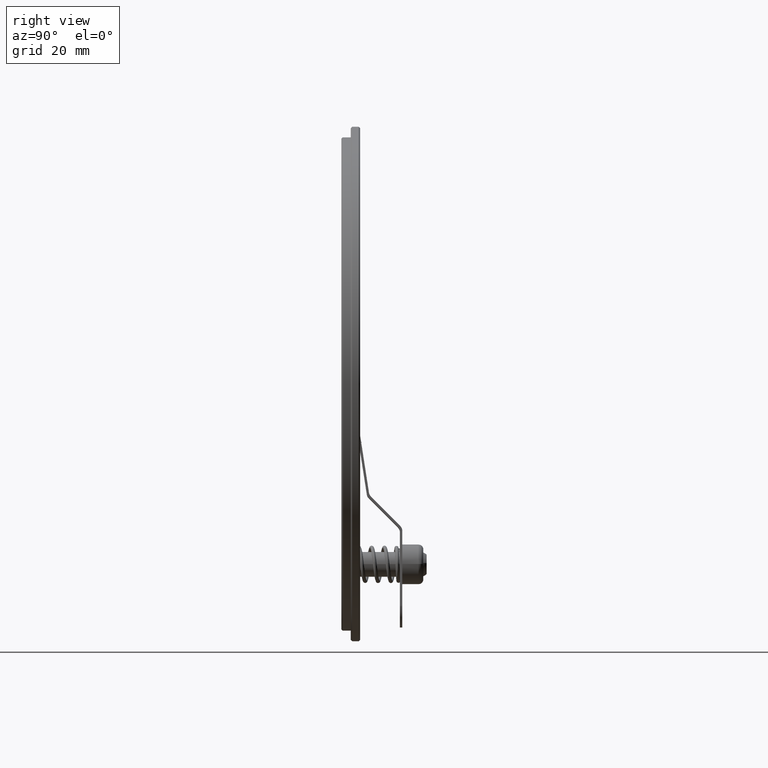
[diagram: clean part render]
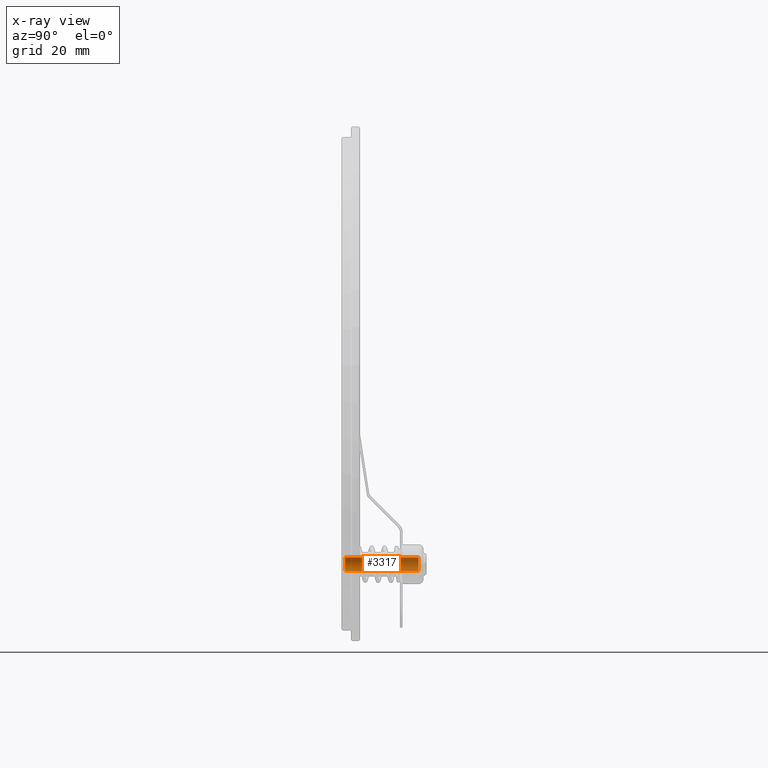
[diagram: x-ray — body ghosted, one internal face saturated and labeled with its STEP entity id]
A machine part, right view, then the same camera in x-ray: the body is ghosted and one INTERNAL B-rep face — a face not visible from any outside direction — is saturated and labeled: STEP entity #3317.
In plain terms, the highlighted cylindrical surface (edge-blend (fillet) strip) has radius 1.5 mm, axis along (0, 1, 0).
Its self-contained STEP definition (entity closure, byte-faithful):
#193 = VERTEX_POINT ( 'NONE', #6890 ) ;
#259 = LINE ( 'NONE', #7495, #5325 ) ;
#533 = EDGE_LOOP ( 'NONE', ( #5088, #6685, #967, #2885 ) ) ;
#702 = CARTESIAN_POINT ( 'NONE',  ( 0.000000000000000000, 0.000000000000000000, 0.000000000000000000 ) ) ;
#877 = DIRECTION ( 'NONE',  ( 0.000000000000000000, 0.000000000000000000, 1.000000000000000000 ) ) ;
#967 = ORIENTED_EDGE ( 'NONE', *, *, #2163, .T. ) ;
#1187 = CARTESIAN_POINT ( 'NONE',  ( 0.000000000000000000, -15.69999999999999929, 1.500000000000000222 ) ) ;
#1352 = AXIS2_PLACEMENT_3D ( 'NONE', #6665, #1882, #4287 ) ;
#1702 = CARTESIAN_POINT ( 'NONE',  ( 1.836970198721030181E-16, 0.000000000000000000, -1.500000000000000222 ) ) ;
#1882 = DIRECTION ( 'NONE',  ( 0.000000000000000000, 1.000000000000000000, 0.000000000000000000 ) ) ;
#2131 = FACE_OUTER_BOUND ( 'NONE', #533, .T. ) ;
#2163 = EDGE_CURVE ( 'NONE', #5123, #6547, #6935, .T. ) ;
#2181 = DIRECTION ( 'NONE',  ( -0.000000000000000000, 1.000000000000000000, -0.000000000000000000 ) ) ;
#2885 = ORIENTED_EDGE ( 'NONE', *, *, #7265, .T. ) ;
#3004 = DIRECTION ( 'NONE',  ( 0.000000000000000000, 0.000000000000000000, 1.000000000000000000 ) ) ;
#3317 = ADVANCED_FACE ( 'NONE', ( #2131 ), #3935, .T. ) ;
#3918 = EDGE_CURVE ( 'NONE', #193, #4320, #259, .T. ) ;
#3935 = CYLINDRICAL_SURFACE ( 'NONE', #6775, 1.500000000000000222 ) ;
#3966 = VECTOR ( 'NONE', #2181, 1000.000000000000000 ) ;
#4287 = DIRECTION ( 'NONE',  ( 0.000000000000000000, 0.000000000000000000, -1.000000000000000000 ) ) ;
#4320 = VERTEX_POINT ( 'NONE', #1702 ) ;
#4498 = CARTESIAN_POINT ( 'NONE',  ( 0.000000000000000000, -16.00000000000000000, 0.000000000000000000 ) ) ;
#5088 = ORIENTED_EDGE ( 'NONE', *, *, #3918, .F. ) ;
#5123 = VERTEX_POINT ( 'NONE', #1187 ) ;
#5220 = CARTESIAN_POINT ( 'NONE',  ( 0.000000000000000000, -16.00000000000000000, 1.500000000000000222 ) ) ;
#5325 = VECTOR ( 'NONE', #6823, 1000.000000000000000 ) ;
#5611 = CARTESIAN_POINT ( 'NONE',  ( 0.000000000000000000, 0.000000000000000000, 1.500000000000000222 ) ) ;
#5783 = CIRCLE ( 'NONE', #6533, 1.500000000000000222 ) ;
#5801 = DIRECTION ( 'NONE',  ( -0.000000000000000000, 1.000000000000000000, -0.000000000000000000 ) ) ;
#6070 = EDGE_CURVE ( 'NONE', #193, #5123, #6524, .T. ) ;
#6524 = CIRCLE ( 'NONE', #1352, 1.500000000000000222 ) ;
#6533 = AXIS2_PLACEMENT_3D ( 'NONE', #702, #6707, #3004 ) ;
#6547 = VERTEX_POINT ( 'NONE', #5611 ) ;
#6665 = CARTESIAN_POINT ( 'NONE',  ( 0.000000000000000000, -15.69999999999999929, 0.000000000000000000 ) ) ;
#6685 = ORIENTED_EDGE ( 'NONE', *, *, #6070, .T. ) ;
#6707 = DIRECTION ( 'NONE',  ( 0.000000000000000000, -1.000000000000000000, 0.000000000000000000 ) ) ;
#6775 = AXIS2_PLACEMENT_3D ( 'NONE', #4498, #5801, #877 ) ;
#6823 = DIRECTION ( 'NONE',  ( -0.000000000000000000, 1.000000000000000000, -0.000000000000000000 ) ) ;
#6890 = CARTESIAN_POINT ( 'NONE',  ( 1.836970198721030181E-16, -15.69999999999999929, -1.500000000000000222 ) ) ;
#6935 = LINE ( 'NONE', #5220, #3966 ) ;
#7265 = EDGE_CURVE ( 'NONE', #6547, #4320, #5783, .T. ) ;
#7495 = CARTESIAN_POINT ( 'NONE',  ( 1.836970198721030181E-16, -16.00000000000000000, -1.500000000000000222 ) ) ;